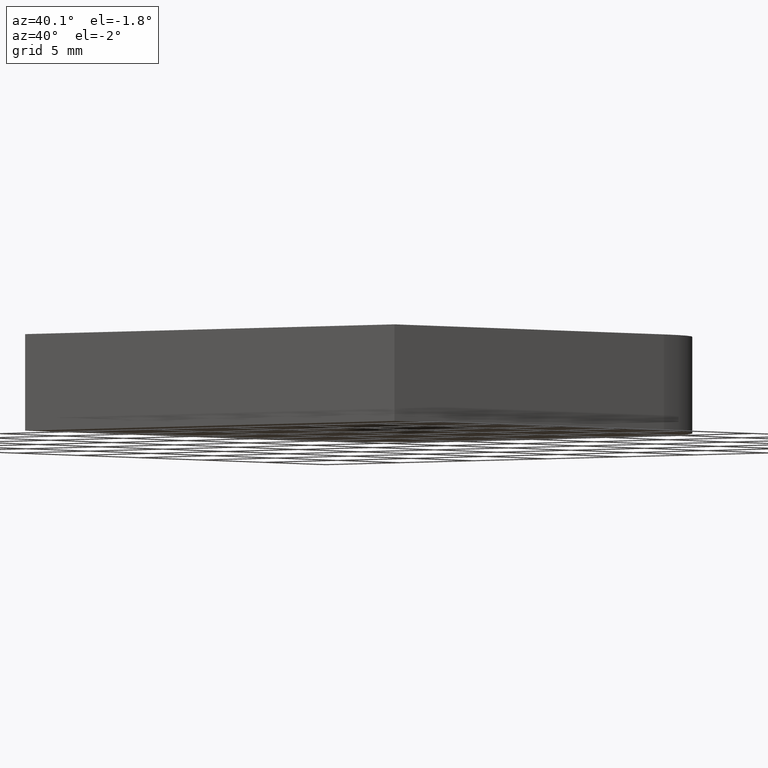
[diagram: clean part render]
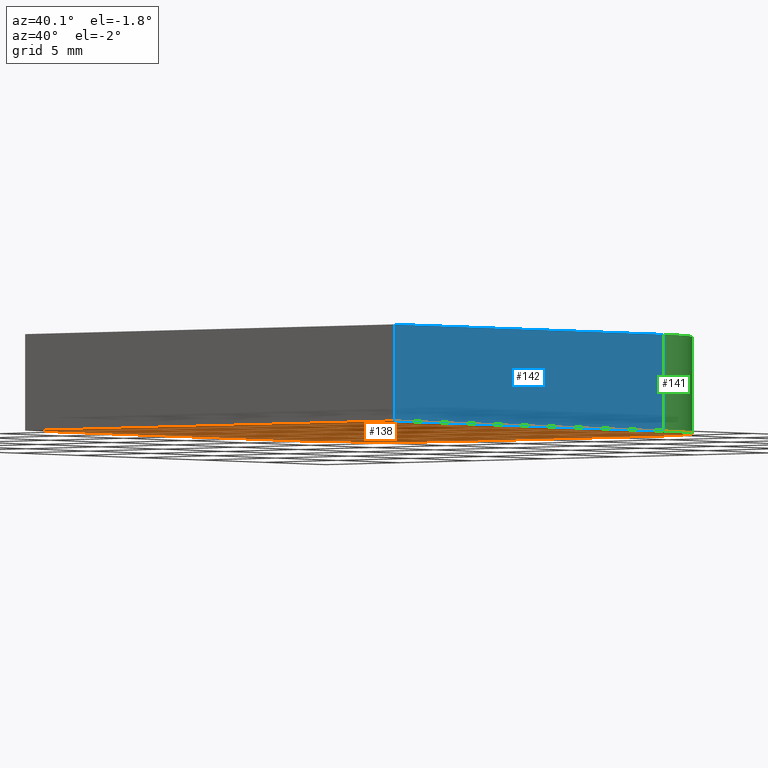
[diagram: same view with three faces highlighted in distinct colors, each labeled with its STEP entity id]
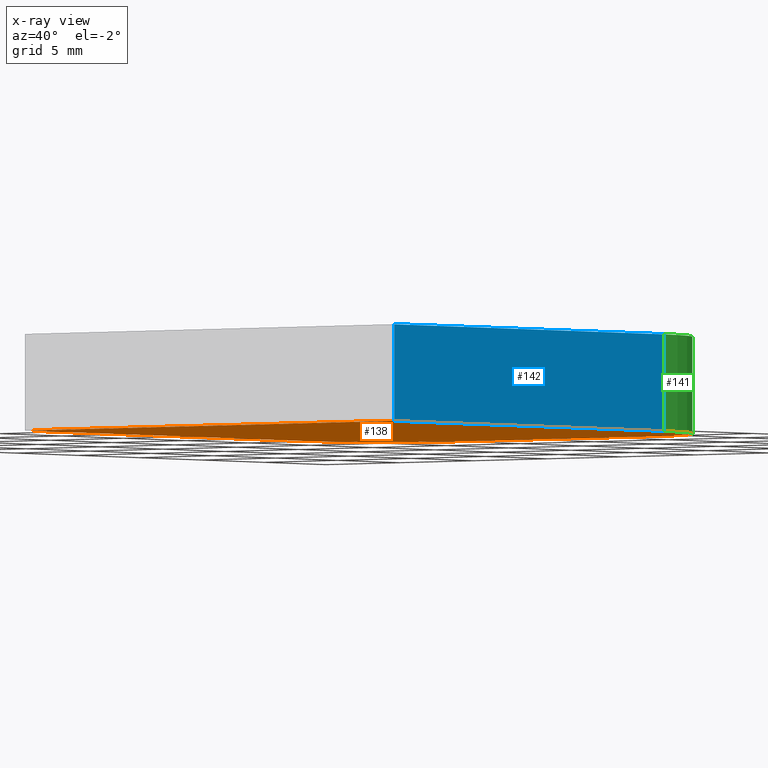
[diagram: x-ray of the same camera — body ghosted, the three highlighted faces saturated]
A machine part, auxiliary view with three faces highlighted in distinct colors.
The next image is the same camera in x-ray (body ghosted, the three faces saturated) — at least one of them is partly hidden behind the body in this view.
Their STEP definitions:

[orange] entity #138 — the highlighted planar face has unit normal (0, 0, 1).
#18=FACE_OUTER_BOUND('',#26,.T.);
#26=EDGE_LOOP('',(#96,#97,#98,#99,#100,#101));
#34=CIRCLE('',#167,6.35);
#35=CIRCLE('',#168,6.35);
#38=LINE('',#222,#52);
#39=LINE('',#224,#53);
#40=LINE('',#228,#54);
#41=LINE('',#231,#55);
#52=VECTOR('',#182,10.);
#53=VECTOR('',#183,10.);
#54=VECTOR('',#186,10.);
#55=VECTOR('',#189,10.);
#66=VERTEX_POINT('',#220);
#67=VERTEX_POINT('',#221);
#68=VERTEX_POINT('',#223);
#69=VERTEX_POINT('',#225);
#70=VERTEX_POINT('',#227);
#71=VERTEX_POINT('',#229);
#78=EDGE_CURVE('',#66,#67,#38,.T.);
#79=EDGE_CURVE('',#68,#66,#39,.T.);
#80=EDGE_CURVE('',#69,#68,#34,.T.);
#81=EDGE_CURVE('',#70,#69,#40,.T.);
#82=EDGE_CURVE('',#71,#70,#35,.T.);
#83=EDGE_CURVE('',#67,#71,#41,.T.);
#96=ORIENTED_EDGE('',*,*,#78,.F.);
#97=ORIENTED_EDGE('',*,*,#79,.F.);
#98=ORIENTED_EDGE('',*,*,#80,.F.);
#99=ORIENTED_EDGE('',*,*,#81,.F.);
#100=ORIENTED_EDGE('',*,*,#82,.F.);
#101=ORIENTED_EDGE('',*,*,#83,.F.);
#132=PLANE('',#166);
#138=ADVANCED_FACE('',(#18),#132,.F.);
#166=AXIS2_PLACEMENT_3D('',#219,#180,#181);
#167=AXIS2_PLACEMENT_3D('',#226,#184,#185);
#168=AXIS2_PLACEMENT_3D('',#230,#187,#188);
#180=DIRECTION('center_axis',(0.,0.,1.));
#181=DIRECTION('ref_axis',(1.,0.,0.));
#182=DIRECTION('',(1.,0.,0.));
#183=DIRECTION('',(-2.05122036882246E-16,-1.,0.));
#184=DIRECTION('center_axis',(0.,0.,1.));
#185=DIRECTION('ref_axis',(0.,-1.,0.));
#186=DIRECTION('',(-1.,0.,0.));
#187=DIRECTION('center_axis',(0.,0.,1.));
#188=DIRECTION('ref_axis',(-1.,6.99353086378052E-16,0.));
#189=DIRECTION('',(-2.05122036882246E-16,1.,0.));
#219=CARTESIAN_POINT('Origin',(-5.55111512312578E-16,-0.832885654894464,
-2.5));
#220=CARTESIAN_POINT('',(-12.5,-14.,-2.5));
#221=CARTESIAN_POINT('',(12.5,-14.,-2.5));
#222=CARTESIAN_POINT('',(12.5,-14.,-2.5));
#223=CARTESIAN_POINT('',(-12.5,7.65,-2.5));
#224=CARTESIAN_POINT('',(-12.5,-14.,-2.5));
#225=CARTESIAN_POINT('',(-6.15,14.,-2.5));
#226=CARTESIAN_POINT('Origin',(-6.15,7.65000000000001,-2.5));
#227=CARTESIAN_POINT('',(6.15,14.,-2.5));
#228=CARTESIAN_POINT('',(-6.15,14.,-2.5));
#229=CARTESIAN_POINT('',(12.5,7.65,-2.5));
#230=CARTESIAN_POINT('Origin',(6.15,7.65000000000001,-2.5));
#231=CARTESIAN_POINT('',(12.5,7.65,-2.5));

[blue] entity #142 — the highlighted planar face has unit normal (1, 0, 0).
#22=FACE_OUTER_BOUND('',#30,.T.);
#30=EDGE_LOOP('',(#114,#115,#116,#117));
#41=LINE('',#231,#55);
#46=LINE('',#245,#60);
#47=LINE('',#248,#61);
#48=LINE('',#249,#62);
#55=VECTOR('',#189,10.);
#60=VECTOR('',#204,10.);
#61=VECTOR('',#207,10.);
#62=VECTOR('',#208,10.);
#67=VERTEX_POINT('',#221);
#71=VERTEX_POINT('',#229);
#75=VERTEX_POINT('',#243);
#76=VERTEX_POINT('',#247);
#83=EDGE_CURVE('',#67,#71,#41,.T.);
#90=EDGE_CURVE('',#75,#71,#46,.T.);
#91=EDGE_CURVE('',#75,#76,#47,.T.);
#92=EDGE_CURVE('',#76,#67,#48,.T.);
#114=ORIENTED_EDGE('',*,*,#91,.T.);
#115=ORIENTED_EDGE('',*,*,#92,.T.);
#116=ORIENTED_EDGE('',*,*,#83,.T.);
#117=ORIENTED_EDGE('',*,*,#90,.F.);
#134=PLANE('',#174);
#142=ADVANCED_FACE('',(#22),#134,.T.);
#174=AXIS2_PLACEMENT_3D('',#246,#205,#206);
#189=DIRECTION('',(-2.05122036882246E-16,1.,0.));
#204=DIRECTION('',(0.,0.,-1.));
#205=DIRECTION('center_axis',(1.,2.05122036882246E-16,0.));
#206=DIRECTION('ref_axis',(0.,0.,-1.));
#207=DIRECTION('',(2.05122036882246E-16,-1.,0.));
#208=DIRECTION('',(0.,0.,-1.));
#221=CARTESIAN_POINT('',(12.5,-14.,-2.5));
#229=CARTESIAN_POINT('',(12.5,7.65,-2.5));
#231=CARTESIAN_POINT('',(12.5,7.65,-2.5));
#243=CARTESIAN_POINT('',(12.5,7.65,2.5));
#245=CARTESIAN_POINT('',(12.5,7.65,0.));
#246=CARTESIAN_POINT('Origin',(12.5,7.65,0.));
#247=CARTESIAN_POINT('',(12.5,-14.,2.5));
#248=CARTESIAN_POINT('',(12.5,7.65,2.5));
#249=CARTESIAN_POINT('',(12.5,-14.,0.));

[green] entity #141 — the highlighted cylindrical surface (partial cylindrical patch) has radius 6.35 mm, axis along (0, 0, 1).
#17=CYLINDRICAL_SURFACE('',#172,6.35);
#21=FACE_OUTER_BOUND('',#29,.T.);
#29=EDGE_LOOP('',(#110,#111,#112,#113));
#35=CIRCLE('',#168,6.35);
#37=CIRCLE('',#173,6.35);
#45=LINE('',#241,#59);
#46=LINE('',#245,#60);
#59=VECTOR('',#199,10.);
#60=VECTOR('',#204,10.);
#70=VERTEX_POINT('',#227);
#71=VERTEX_POINT('',#229);
#74=VERTEX_POINT('',#239);
#75=VERTEX_POINT('',#243);
#82=EDGE_CURVE('',#71,#70,#35,.T.);
#88=EDGE_CURVE('',#74,#70,#45,.T.);
#89=EDGE_CURVE('',#74,#75,#37,.T.);
#90=EDGE_CURVE('',#75,#71,#46,.T.);
#110=ORIENTED_EDGE('',*,*,#89,.T.);
#111=ORIENTED_EDGE('',*,*,#90,.T.);
#112=ORIENTED_EDGE('',*,*,#82,.T.);
#113=ORIENTED_EDGE('',*,*,#88,.F.);
#141=ADVANCED_FACE('',(#21),#17,.T.);
#168=AXIS2_PLACEMENT_3D('',#230,#187,#188);
#172=AXIS2_PLACEMENT_3D('',#242,#200,#201);
#173=AXIS2_PLACEMENT_3D('',#244,#202,#203);
#187=DIRECTION('center_axis',(0.,0.,1.));
#188=DIRECTION('ref_axis',(-1.,6.99353086378052E-16,0.));
#199=DIRECTION('',(0.,0.,-1.));
#200=DIRECTION('center_axis',(0.,0.,1.));
#201=DIRECTION('ref_axis',(-1.,6.99353086378052E-16,0.));
#202=DIRECTION('center_axis',(0.,0.,-1.));
#203=DIRECTION('ref_axis',(-1.,6.99353086378052E-16,0.));
#204=DIRECTION('',(0.,0.,-1.));
#227=CARTESIAN_POINT('',(6.15,14.,-2.5));
#229=CARTESIAN_POINT('',(12.5,7.65,-2.5));
#230=CARTESIAN_POINT('Origin',(6.15,7.65000000000001,-2.5));
#239=CARTESIAN_POINT('',(6.15,14.,2.5));
#241=CARTESIAN_POINT('',(6.15,14.,0.));
#242=CARTESIAN_POINT('Origin',(6.15,7.65000000000001,0.));
#243=CARTESIAN_POINT('',(12.5,7.65,2.5));
#244=CARTESIAN_POINT('Origin',(6.15,7.65000000000001,2.5));
#245=CARTESIAN_POINT('',(12.5,7.65,0.));